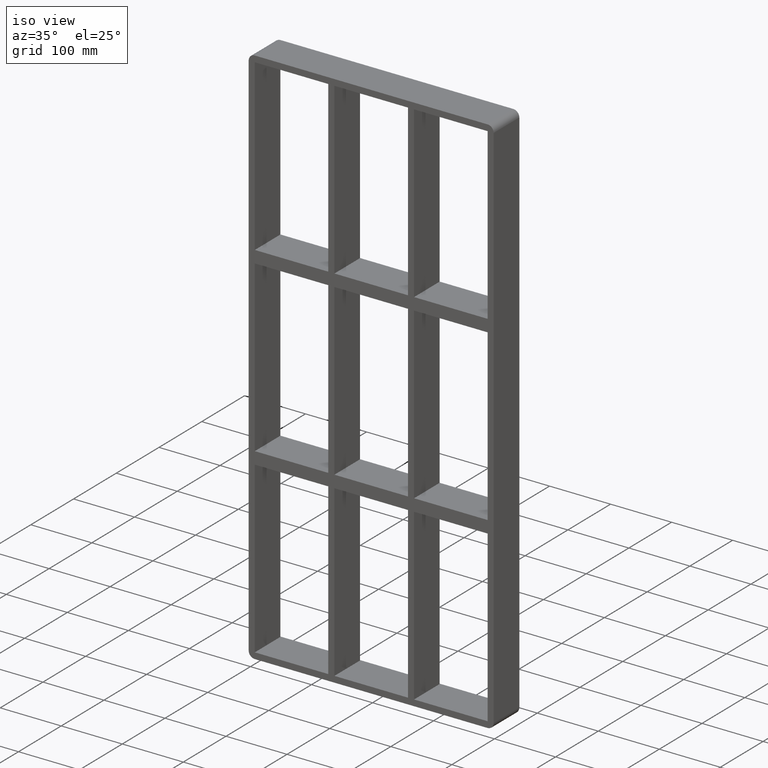
[diagram: clean part render]
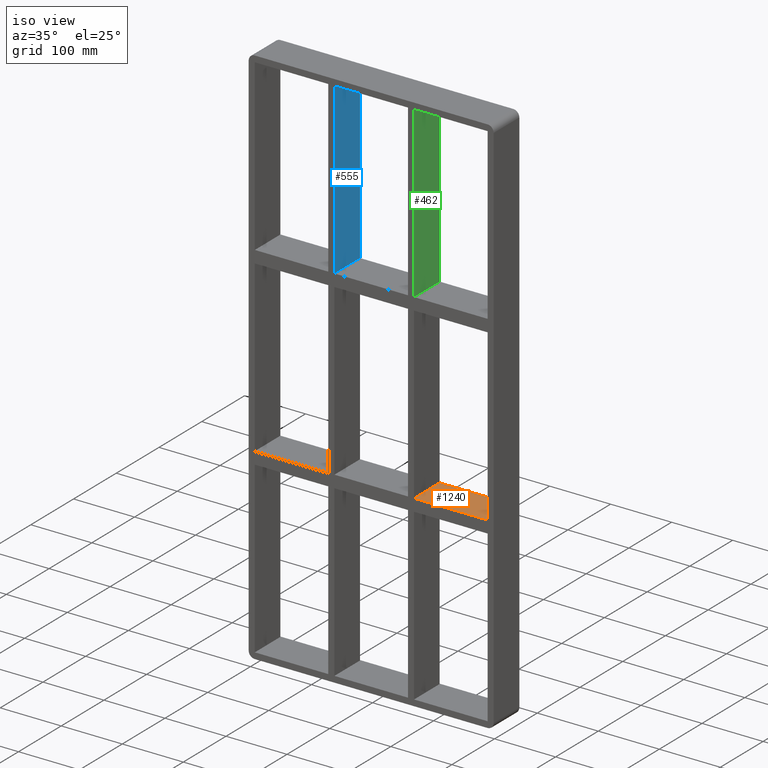
[diagram: same view with three faces highlighted in distinct colors, each labeled with its STEP entity id]
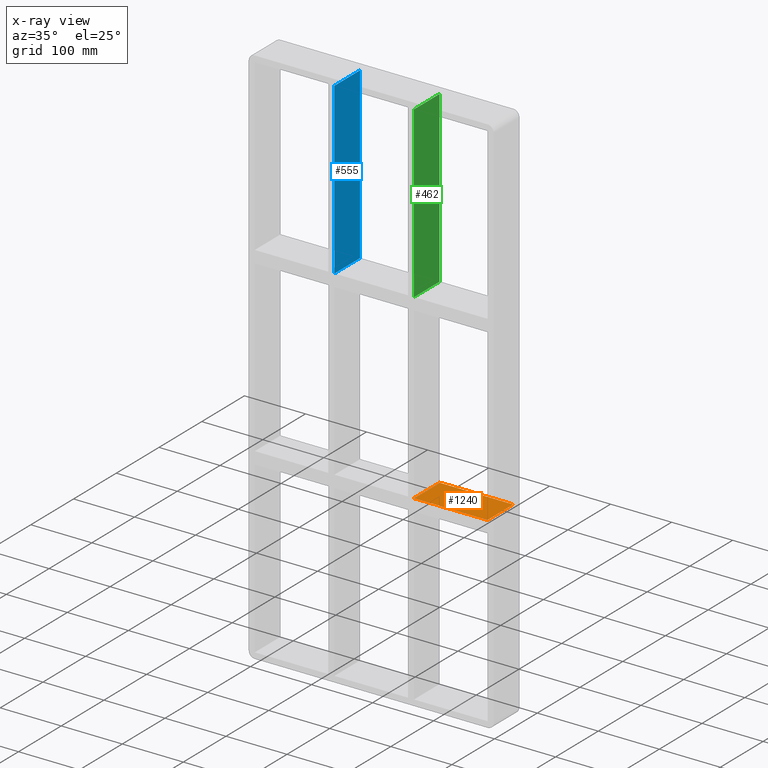
[diagram: x-ray of the same camera — body ghosted, the three highlighted faces saturated]
A machine part, iso view with three faces highlighted in distinct colors.
The next image is the same camera in x-ray (body ghosted, the three faces saturated) — at least one of them is partly hidden behind the body in this view.
Their STEP definitions:

[orange] entity #1240 — the highlighted planar face has unit normal (0, 0, 1).
#345=CARTESIAN_POINT('',(190.74999999999991,57.0,-139.00000000000006));
#346=VERTEX_POINT('',#345);
#353=CARTESIAN_POINT('',(190.74999999999991,-3.0,-139.00000000000006));
#354=VERTEX_POINT('',#353);
#355=CARTESIAN_POINT('',(190.75000000000003,57.000000000000007,-139.00000000000006));
#356=DIRECTION('',(0.0,-1.0,0.0));
#357=VECTOR('',#356,60.000000000000007);
#358=LINE('',#355,#357);
#359=EDGE_CURVE('',#346,#354,#358,.T.);
#672=CARTESIAN_POINT('',(70.250000000003638,57.0,-139.00000000000006));
#673=VERTEX_POINT('',#672);
#680=CARTESIAN_POINT('',(70.250000000003638,57.0,-139.00000000000006));
#681=DIRECTION('',(1.0,0.0,0.0));
#682=VECTOR('',#681,120.49999999999631);
#683=LINE('',#680,#682);
#684=EDGE_CURVE('',#673,#346,#683,.T.);
#889=CARTESIAN_POINT('',(70.250000000003638,-3.0,-139.00000000000006));
#890=VERTEX_POINT('',#889);
#897=CARTESIAN_POINT('',(70.250000000003638,57.0,-139.00000000000006));
#898=DIRECTION('',(0.0,-1.0,0.0));
#899=VECTOR('',#898,60.0);
#900=LINE('',#897,#899);
#901=EDGE_CURVE('',#673,#890,#900,.T.);
#1073=CARTESIAN_POINT('',(70.250000000003638,-3.0,-139.00000000000006));
#1074=DIRECTION('',(1.0,0.0,0.0));
#1075=VECTOR('',#1074,120.49999999999631);
#1076=LINE('',#1073,#1075);
#1077=EDGE_CURVE('',#890,#354,#1076,.T.);
#1229=CARTESIAN_POINT('',(-190.74999999999972,-3.0,-139.00000000000006));
#1230=DIRECTION('',(0.0,0.0,1.0));
#1231=DIRECTION('',(1.0,0.0,0.0));
#1232=AXIS2_PLACEMENT_3D('',#1229,#1230,#1231);
#1233=PLANE('',#1232);
#1234=ORIENTED_EDGE('',*,*,#901,.T.);
#1235=ORIENTED_EDGE('',*,*,#1077,.T.);
#1236=ORIENTED_EDGE('',*,*,#359,.F.);
#1237=ORIENTED_EDGE('',*,*,#684,.F.);
#1238=EDGE_LOOP('',(#1234,#1235,#1236,#1237));
#1239=FACE_OUTER_BOUND('',#1238,.T.);
#1240=ADVANCED_FACE('',(#1239),#1233,.T.);

[blue] entity #555 — the highlighted planar face has unit normal (1, 0, 0).
#283=CARTESIAN_POINT('',(-60.249999999996362,57.0,158.99999999999994));
#284=VERTEX_POINT('',#283);
#291=CARTESIAN_POINT('',(-60.249999999996362,-3.0,158.99999999999994));
#292=VERTEX_POINT('',#291);
#293=CARTESIAN_POINT('',(-60.249999999996362,-3.0,158.99999999999994));
#294=DIRECTION('',(0.0,1.0,0.0));
#295=VECTOR('',#294,60.0);
#296=LINE('',#293,#295);
#297=EDGE_CURVE('',#292,#284,#296,.T.);
#525=CARTESIAN_POINT('',(-60.249999999996362,-3.0,437.0));
#526=DIRECTION('',(1.0,0.0,0.0));
#527=DIRECTION('',(0.0,0.0,-1.0));
#528=AXIS2_PLACEMENT_3D('',#525,#526,#527);
#529=PLANE('',#528);
#530=ORIENTED_EDGE('',*,*,#297,.T.);
#531=CARTESIAN_POINT('',(-60.249999999996362,57.0,437.0));
#532=VERTEX_POINT('',#531);
#533=CARTESIAN_POINT('',(-60.249999999996362,57.0,437.0));
#534=DIRECTION('',(0.0,0.0,-1.0));
#535=VECTOR('',#534,278.00000000000006);
#536=LINE('',#533,#535);
#537=EDGE_CURVE('',#532,#284,#536,.T.);
#538=ORIENTED_EDGE('',*,*,#537,.F.);
#539=CARTESIAN_POINT('',(-60.249999999996362,-3.0,437.0));
#540=VERTEX_POINT('',#539);
#541=CARTESIAN_POINT('',(-60.249999999996362,-3.0,437.0));
#542=DIRECTION('',(0.0,1.0,0.0));
#543=VECTOR('',#542,60.000000000000007);
#544=LINE('',#541,#543);
#545=EDGE_CURVE('',#540,#532,#544,.T.);
#546=ORIENTED_EDGE('',*,*,#545,.F.);
#547=CARTESIAN_POINT('',(-60.249999999996362,-3.0,437.0));
#548=DIRECTION('',(0.0,0.0,-1.0));
#549=VECTOR('',#548,278.00000000000006);
#550=LINE('',#547,#549);
#551=EDGE_CURVE('',#540,#292,#550,.T.);
#552=ORIENTED_EDGE('',*,*,#551,.T.);
#553=EDGE_LOOP('',(#530,#538,#546,#552));
#554=FACE_OUTER_BOUND('',#553,.T.);
#555=ADVANCED_FACE('',(#554),#529,.T.);

[green] entity #462 — the highlighted planar face has unit normal (1, 0, 0).
#233=CARTESIAN_POINT('',(70.250000000003638,-3.0,158.99999999999994));
#234=VERTEX_POINT('',#233);
#235=CARTESIAN_POINT('',(70.250000000003638,57.0,158.99999999999994));
#236=VERTEX_POINT('',#235);
#237=CARTESIAN_POINT('',(70.250000000003638,-3.0,158.99999999999994));
#238=DIRECTION('',(0.0,1.0,0.0));
#239=VECTOR('',#238,60.0);
#240=LINE('',#237,#239);
#241=EDGE_CURVE('',#234,#236,#240,.T.);
#432=CARTESIAN_POINT('',(70.250000000003638,-3.0,437.0));
#433=DIRECTION('',(1.0,0.0,0.0));
#434=DIRECTION('',(0.0,0.0,-1.0));
#435=AXIS2_PLACEMENT_3D('',#432,#433,#434);
#436=PLANE('',#435);
#437=ORIENTED_EDGE('',*,*,#241,.T.);
#438=CARTESIAN_POINT('',(70.250000000003638,57.0,437.0));
#439=VERTEX_POINT('',#438);
#440=CARTESIAN_POINT('',(70.250000000003638,57.0,437.0));
#441=DIRECTION('',(0.0,0.0,-1.0));
#442=VECTOR('',#441,278.00000000000006);
#443=LINE('',#440,#442);
#444=EDGE_CURVE('',#439,#236,#443,.T.);
#445=ORIENTED_EDGE('',*,*,#444,.F.);
#446=CARTESIAN_POINT('',(70.250000000003638,-3.0,437.0));
#447=VERTEX_POINT('',#446);
#448=CARTESIAN_POINT('',(70.250000000003638,-3.0,437.0));
#449=DIRECTION('',(0.0,1.0,0.0));
#450=VECTOR('',#449,60.000000000000007);
#451=LINE('',#448,#450);
#452=EDGE_CURVE('',#447,#439,#451,.T.);
#453=ORIENTED_EDGE('',*,*,#452,.F.);
#454=CARTESIAN_POINT('',(70.250000000003638,-3.0,437.0));
#455=DIRECTION('',(0.0,0.0,-1.0));
#456=VECTOR('',#455,278.00000000000006);
#457=LINE('',#454,#456);
#458=EDGE_CURVE('',#447,#234,#457,.T.);
#459=ORIENTED_EDGE('',*,*,#458,.T.);
#460=EDGE_LOOP('',(#437,#445,#453,#459));
#461=FACE_OUTER_BOUND('',#460,.T.);
#462=ADVANCED_FACE('',(#461),#436,.T.);